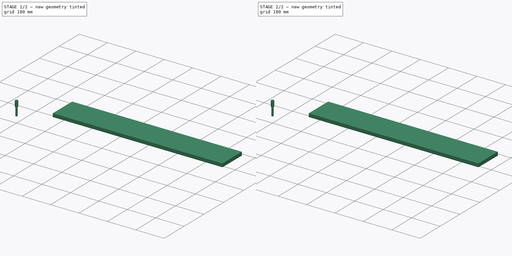
[diagram: build sequence overview — one tinted view per stage of 2, left to right]
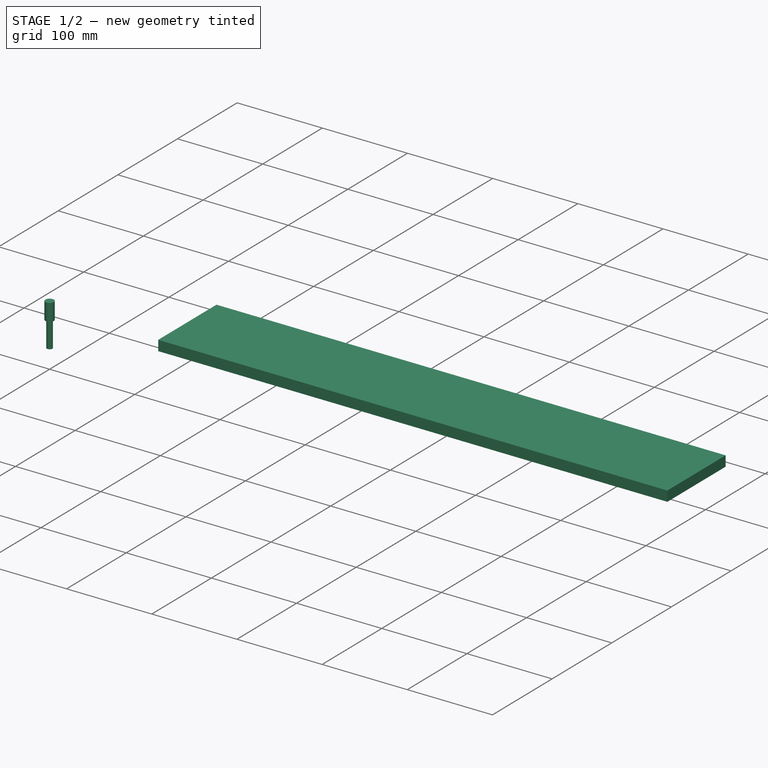
[diagram: stage 1 of 2 — iso view after this stage's code; geometry added in this stage tinted green]
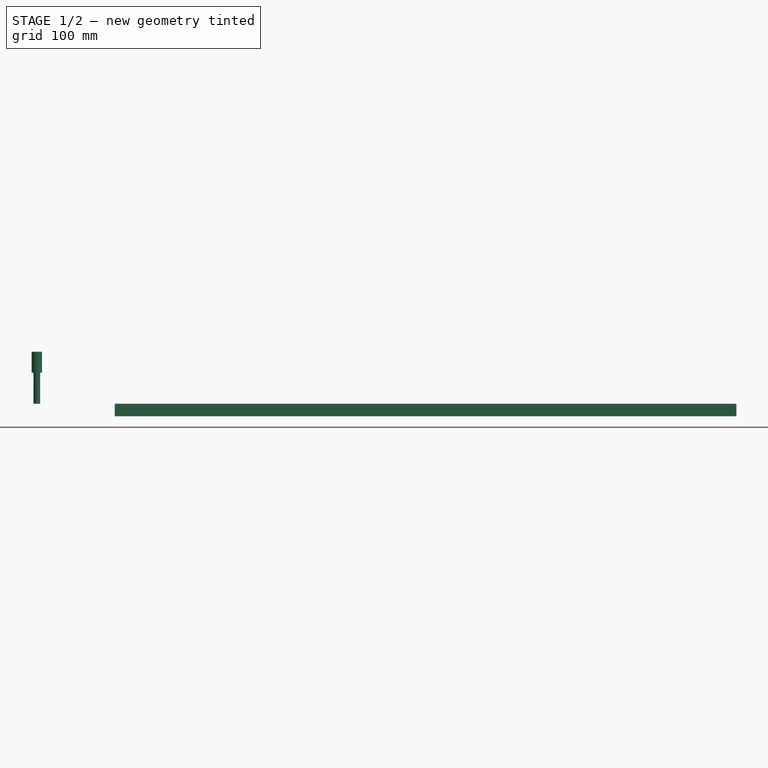
[diagram: stage 1 of 2 — front view after this stage's code; geometry added in this stage tinted green]
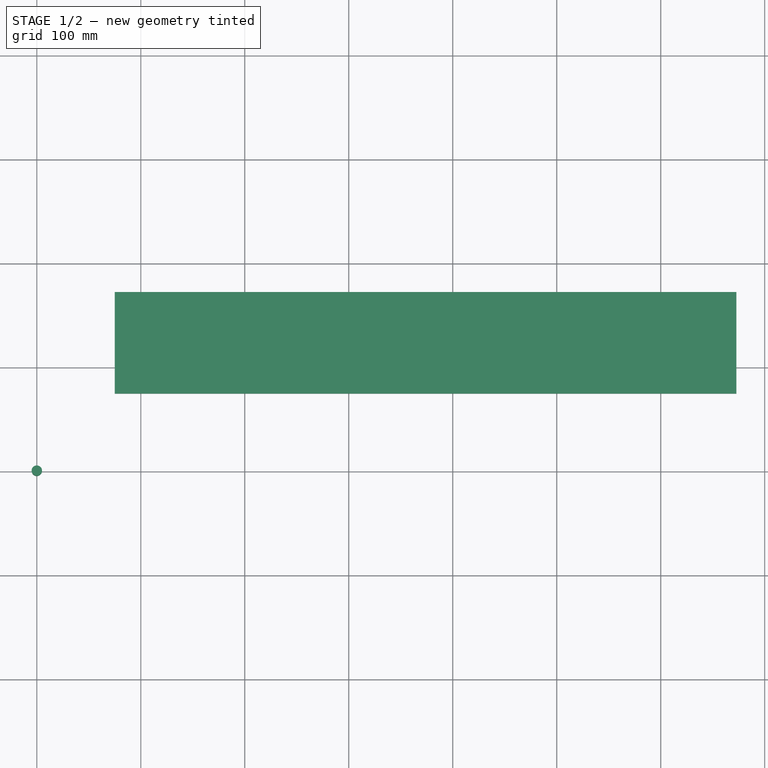
[diagram: stage 1 of 2 — top view after this stage's code; geometry added in this stage tinted green]
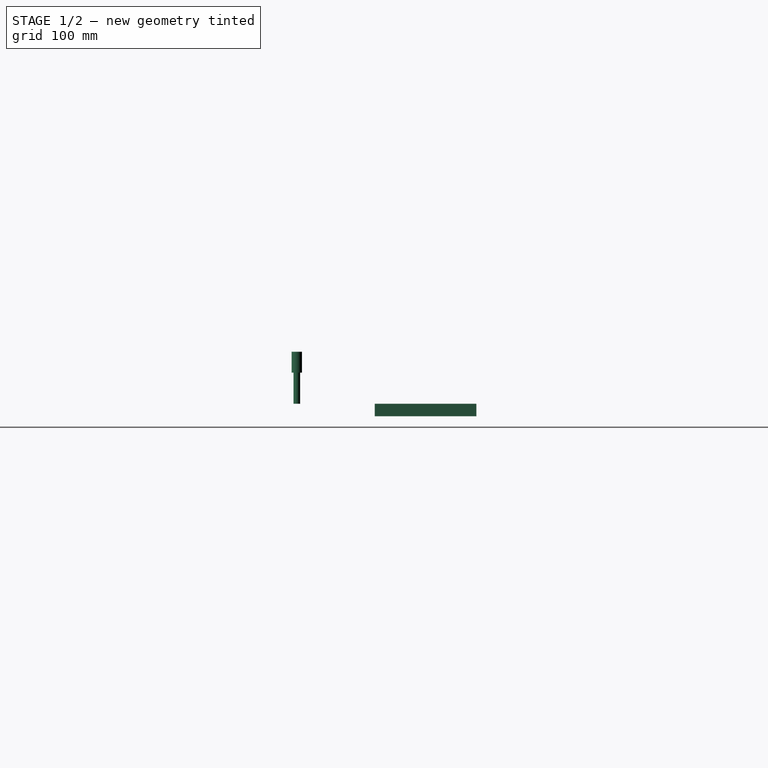
[diagram: stage 1 of 2 — right view after this stage's code; geometry added in this stage tinted green]
FCSTD DOCUMENT  (FreeCAD 0.19R14555 (Git shallow))
Label: Signs
License: All rights reserved
LicenseURL: http://en.wikipedia.org/wiki/All_rights_reserved
objects: Path::FeaturePython×4, Part::FeaturePython×3, Part::Part2DObjectPython×2, App::DocumentObjectGroup×2, Sketcher::SketchObject×1, Spreadsheet::Sheet×1, PartDesign::Pad×1, PartDesign::Body×1, App::FeaturePython×1, Path::FeatureCompoundPython×1
note: 10 computed .brp shape members not serialized (recipe doc carries the construction recipe); baked Part::Feature solids carry a one-line shape summary decoded from their .brp

FEATURE [Part::Part2DObjectPython] Clone2D001  label="Model-ShapeString001"  # Draft 2D object (typed FeaturePython)
  Fuse = false
  Objects = -> [ShapeString]
  PathResource = Model
  Placement = pos=(100,100,0) rot=(0,0,1;0rad)
  Scale = (1,1,1)
FEATURE [App::DocumentObjectGroup] Model002  label="Model"
  Group = -> [Clone001,Clone2D001]
FEATURE [Part::FeaturePython] ToolBit003  label="6.4mm Endmill004"  # Path/CAM toolbit (typed FeaturePython)
  BitPropertyNames = Chipload | CuttingEdgeHeight | Diameter | Flutes | Length | Material | ShankDiameter
  BitShape = /app/freecad/Mod/Path/Tools/Shape/endmill.fcstd
  Chipload = 0
  CuttingEdgeHeight = 30
  Diameter = 6.4
  File = <userpath>/MensShed/CNCRouter/FreeCAD/Bit/6.4mm_Endmill.fctb
  Flutes = 0
  Length = 50
  Material = 0
  ShankDiameter = 10
  ShapeName = endmill
FEATURE [Path::FeaturePython] __4mm_Endmill004  label="6.4mm Endmill005"  # Path/CAM operation (typed FeaturePython)
  HorizFeed = 10
  HorizRapid = 0
  SpindleDir = 0
  SpindleSpeed = 10000
  Tool = -> ToolBit003
  ToolNumber = 2
  VertFeed = 10
  VertRapid = 0
  expr: HorizRapid = SetupSheet002.HorizRapid
  expr: VertRapid = SetupSheet002.VertRapid
FEATURE [App::DocumentObjectGroup] Tools002  label="Tools"
  Group = -> [__4mm_Endmill004]
FEATURE [Path::FeaturePython] Engrave001  label="Engrave"  # Path/CAM operation (typed FeaturePython)
  Active = true
  ClearanceHeight = 5
  CoolantMode = None
  CycleTime = 00:09:55
  FinalDepth = -3
  OpFinalDepth = -2
  OpStartDepth = 0
  OpStockZMax = 0
  OpStockZMin = -12
  OpToolDiameter = 6.4
  SafeHeight = 3
  StartDepth = 0
  StartVertex = 0
  StepDown = 2
  ToolController = -> __4mm_Endmill004
  expr: ClearanceHeight = OpStockZMax + SetupSheet002.ClearanceHeightOffset
  expr: SafeHeight = OpStockZMax + SetupSheet002.SafeHeightOffset
  expr: StepDown = 2
  expr: FinalDepth = -3
  expr: StartDepth = 0
FEATURE [Path::FeaturePython] Profile001  label="Profile"  # Path/CAM operation (typed FeaturePython)
  Active = true
  AreaParams:
    Tolerance = 1e-07
    FitArcs = True
    Simplify = False
    CleanDistance = 0.0
    Accuracy = 0.01
    Unit = 1.0
    MinArcPoints = 4
    MaxArcPoints = 100
    ClipperScale = 10000000.0
    Fill = 0
    Coplanar = 0
    Reorient = True
    Outline = False
    Explode = False
    OpenMode = 0
    Deflection = 0.01
    SubjectFill = 0
    ClipFill = 0
    Offset = 3.2
    ExtraPass = 0
    Stepover = 0.0
    LastStepover = 0.0
    JoinType = 0
    EndType = 0
    MiterLimit = 2.0
    RoundPrecision = 0.0
    PocketMode = 0
    ToolRadius = 1.0
    PocketExtraOffset = 0.0
    PocketStepover = 0.0
    PocketLastStepover = 0.0
    FromCenter = False
    Angle = 45.0
    AngleShift = 0.0
    Shift = 0.0
    Thicken = False
    SectionCount = -1
    Stepdown = 1.0
    SectionOffset = 0.0
    SectionTolerance = 1e-06
    SectionMode = 2
    Project = False
  AttemptInverseAngle = true
  Base = -> [Clone001]
  ClearanceHeight = 5
  CoolantMode = None
  CycleTime = 00:10:35
  Direction = 0
  EnableRotation = 0
  FinalDepth = -12
  HandleMultipleFeatures = 0
  InverseAngle = false
  JoinType = 0
  LimitDepthToFace = true
  MiterLimit = 0.1
  OffsetExtra = 0
  OpFinalDepth = -12
  OpStartDepth = 0
  OpStockZMax = 0
  OpStockZMin = -12
  OpToolDiameter = 6.4
  PathParams = {'orientation': 1, 'feedrate': 10.0, 'feedrate_v': 10.0, 'verbose': True, 'resume_height': 3.0, 'retraction': 5.0, 'return_end': True, 'preamble': False}
  ReverseDirection = false
  SafeHeight = 3
  Side = 0
  StartDepth = 0
  StartPoint = (0,0,0)
  StepDown = 3
  ToolController = -> __4mm_Endmill004
  UseComp = true
  UseStartPoint = false
  processCircles = false
  processHoles = false
  processPerimeter = true
  expr: ClearanceHeight = OpStockZMax + SetupSheet002.ClearanceHeightOffset
  expr: SafeHeight = OpStockZMax + SetupSheet002.SafeHeightOffset
  expr: StepDown = 3
  expr: FinalDepth = OpFinalDepth
  expr: StartDepth = 0
FEATURE [Path::FeatureCompoundPython] Operations002  label="Operations"  # Path/CAM operation (typed FeaturePython)
  Group = -> [Engrave001,Profile001]
  UsePlacements = false
FEATURE [Part::FeaturePython] Stock  label="Stock001"  # WARN: FeaturePython — macro-defined, semantics opaque (R4)
  Height = 12
  Length = 597.77
  Placement = pos=(75,75,-12) rot=(0,0,1;0rad)
  StockType = CreateBox
  Width = 97.68
FEATURE [Path::FeaturePython] Job002  label="Job"  # Path/CAM operation (typed FeaturePython)
  CycleTime = 00:20:30
  Fixtures = G54
  GeometryTolerance = 0.01
  LastPostProcessDate = 2022-01-28 13:35:25.258617
  LastPostProcessOutput = <userpath>/MensShed/CNCRouter/Signs/Signs.ngc
  Model = -> Model002
  Operations = -> Operations002
  OrderOutputBy = 0
  PostProcessor = 7
  PostProcessorOutputFile = %D/%d.ngc
  SetupSheet = -> SetupSheet002
  SplitOutput = false
  Stock = -> Stock
  Tools = -> Tools002
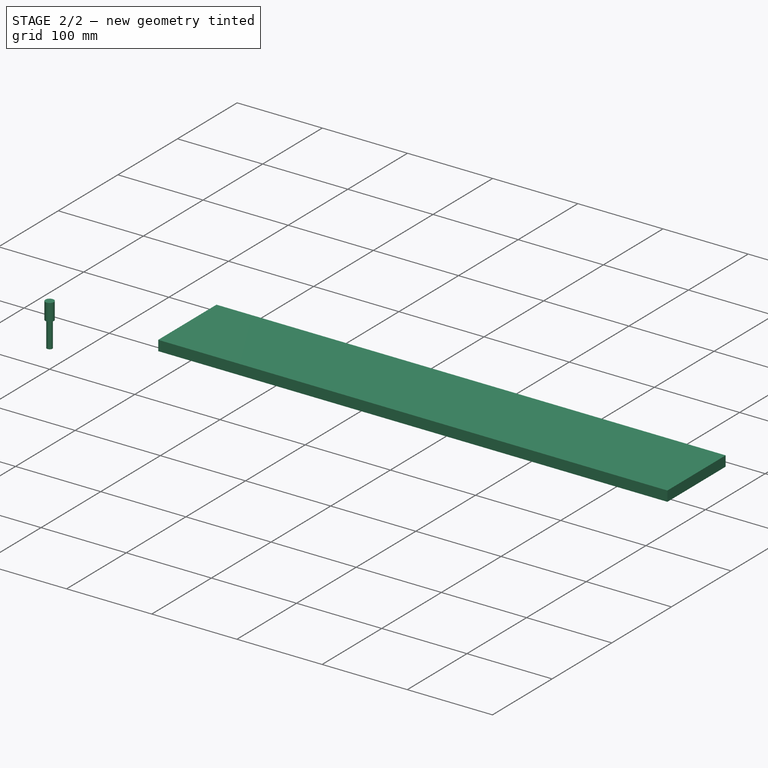
[diagram: stage 2 of 2 — iso view after this stage's code; geometry added in this stage tinted green]
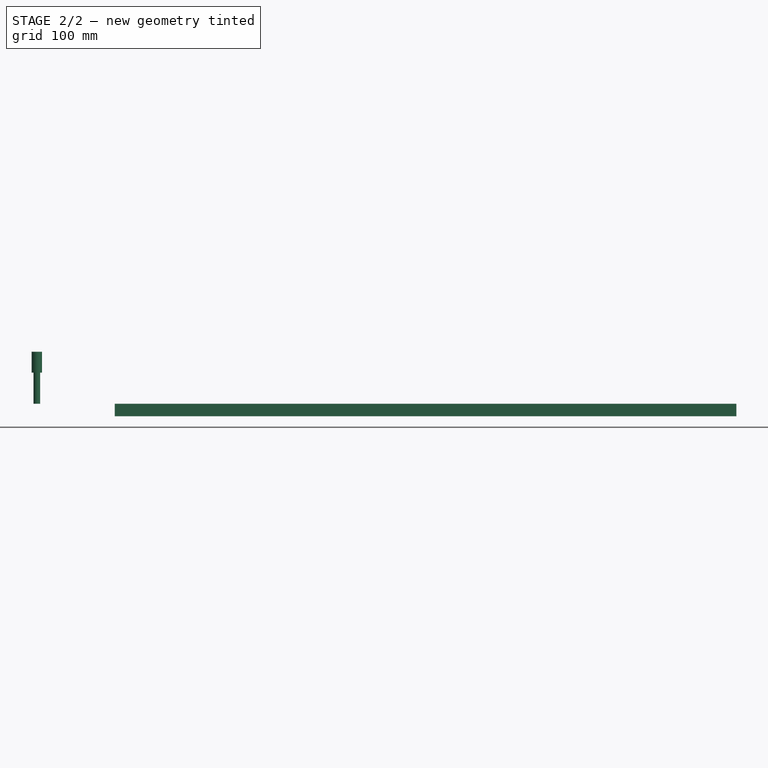
[diagram: stage 2 of 2 — front view after this stage's code; geometry added in this stage tinted green]
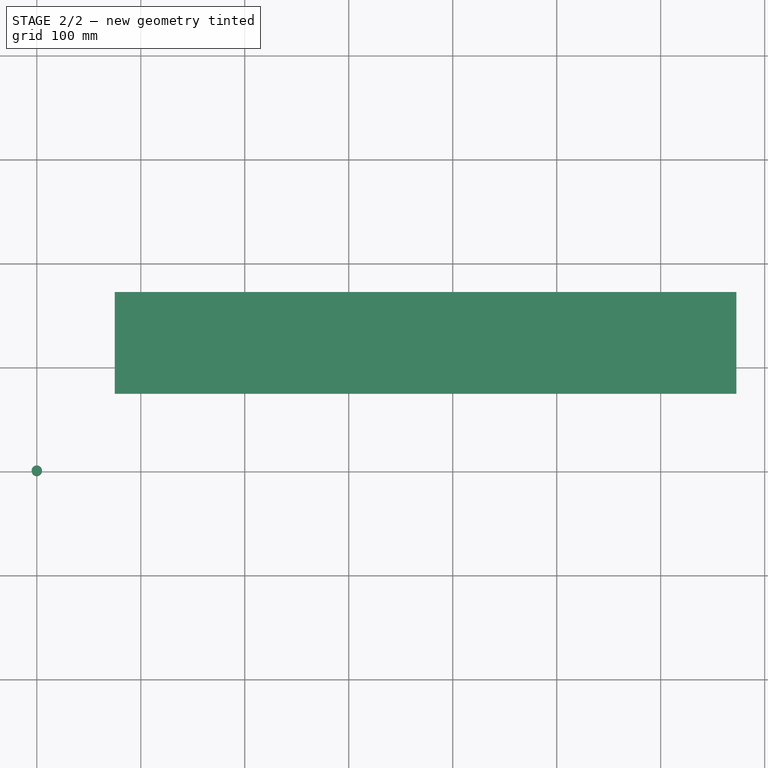
[diagram: stage 2 of 2 — top view after this stage's code; geometry added in this stage tinted green]
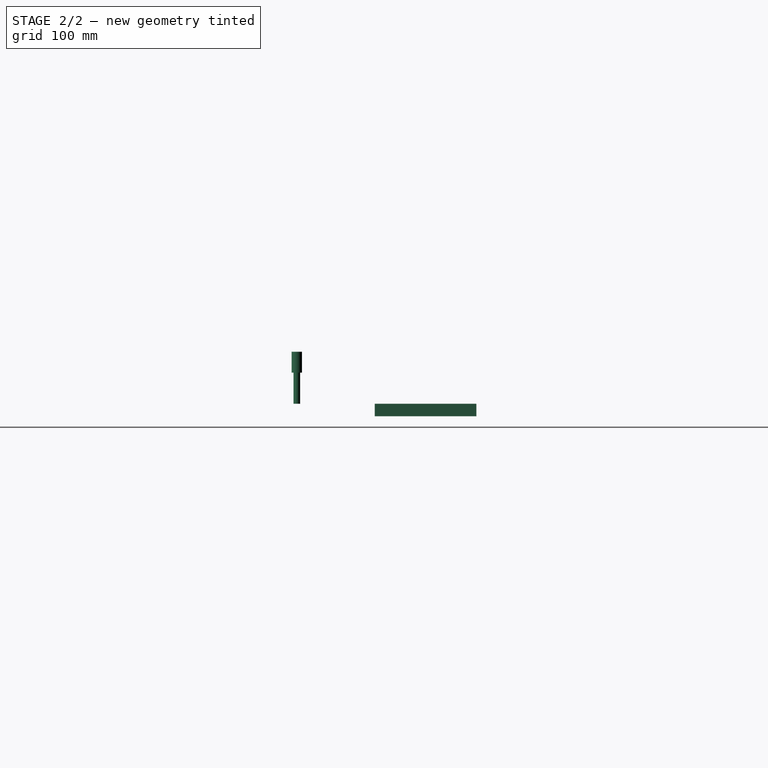
[diagram: stage 2 of 2 — right view after this stage's code; geometry added in this stage tinted green]
FEATURE [Sketcher::SketchObject] Sketch
  FullyConstrained = true
  MapMode = 5
  Support = -> [XY_Plane]
  expr: Constraints[11] = <<SignSizes>>.XOffset
  expr: Constraints[10] = <<SignSizes>>.YOffset
  expr: Constraints[9] = <<SignSizes>>.Width
  expr: Constraints[8] = <<SignSizes>>.Length
  sketch-geometry (4):
    g0: LineSegment StartX=75 StartY=172.678 StartZ=0 EndX=672.772 EndY=172.678 EndZ=0
    g1: LineSegment StartX=672.772 StartY=172.678 StartZ=0 EndX=672.772 EndY=75 EndZ=0
    g2: LineSegment StartX=672.772 StartY=75 StartZ=0 EndX=75 EndY=75 EndZ=0
    g3: LineSegment StartX=75 StartY=75 StartZ=0 EndX=75 EndY=172.678 EndZ=0
  constraints (12):
    c: Coincident(g0,g1)
    c: Coincident(g1,g2)
    c: Coincident(g2,g3)
    c: Coincident(g3,g0)
    c: Horizontal(g0)
    c: Horizontal(g2)
    c: Vertical(g1)
    c: Vertical(g3)
    c: DistanceX(g2,g1) = 597.772
    c: DistanceY(g2,g0) = 97.6779
    c: DistanceY(g-1,g2) = 75
    c: DistanceX(g-1,g2) = 75
FEATURE [Spreadsheet::Sheet] Spreadsheet  label="SignSizes"
  cells = A1=Sign Length; B1(Length)==B9 + 50; A2=Sign Width; B2(Width)==B10 + 50; A3=Sign Thickness; B3(Thickness)=12; A4=X Offset; B4(XOffset)==B12 - B14; C4=10; A5=Y Offset; B5(YOffset)==B13 - B14; A7=Text Information Read from Shapestring; A8=String; B8==<<ShapeString>>.String; A9=Text Length; B9==<<ShapeString>>.Shape.BoundBox.XLength; A10=Text Width; B10==<<ShapeString>>.Shape.BoundBox.YLength; A11=Font Size; B11==<<ShapeString>>.Size; A12=Text X Location; B12==<<ShapeString>>.Placement.Base.x; A13=Text X Location; B13==<<ShapeString>>.Placement.Base.y; A14=Margin; B14==25mm; A15=Text Depth; B15(TextDepth)=-5
FEATURE [PartDesign::Pad] Pad
  Direction = (1,1,1)
  Length = 12
  Length2 = 100
  Profile = -> Sketch
  Reversed = true
  Type = 0
  expr: Length = <<SignSizes>>.Thickness
FEATURE [PartDesign::Body] Body  label="Rectangle"
  Group = -> [Sketch,Pad]
  Origin = -> Origin
  Tip = -> Pad
FEATURE [Part::Part2DObjectPython] ShapeString  # Draft 2D object (typed FeaturePython)
  FontFile = /run/user/1000/doc/bc03c9e0/DejaVuSans-Bold.ttf
  Placement = pos=(100,100,0) rot=(0,0,1;0rad)
  Size = 48
  String = The Men's Shed
  Tracking = 0
FEATURE [App::FeaturePython] SetupSheet002  label="SetupSheet"  # Path/CAM operation (typed FeaturePython)
  ClearanceHeightExpression = OpStockZMax+SetupSheet002.ClearanceHeightOffset
  ClearanceHeightOffset = 5
  CoolantMode = 0
  CoolantModes = None | Flood | Mist
  FinalDepthExpression = OpFinalDepth
  HorizRapid = 0
  SafeHeightExpression = OpStockZMax+SetupSheet002.SafeHeightOffset
  SafeHeightOffset = 3
  StartDepthExpression = OpStartDepth
  StepDownExpression = OpToolDiameter
  VertRapid = 0
FEATURE [Part::FeaturePython] Clone001  label="Model-Rectangle001"  # Draft clone (typed FeaturePython)
  AttacherType = Attacher::AttachEngine3D
  Fuse = false
  Objects = -> [Body]
  PathResource = Model
  Scale = (1,1,1)
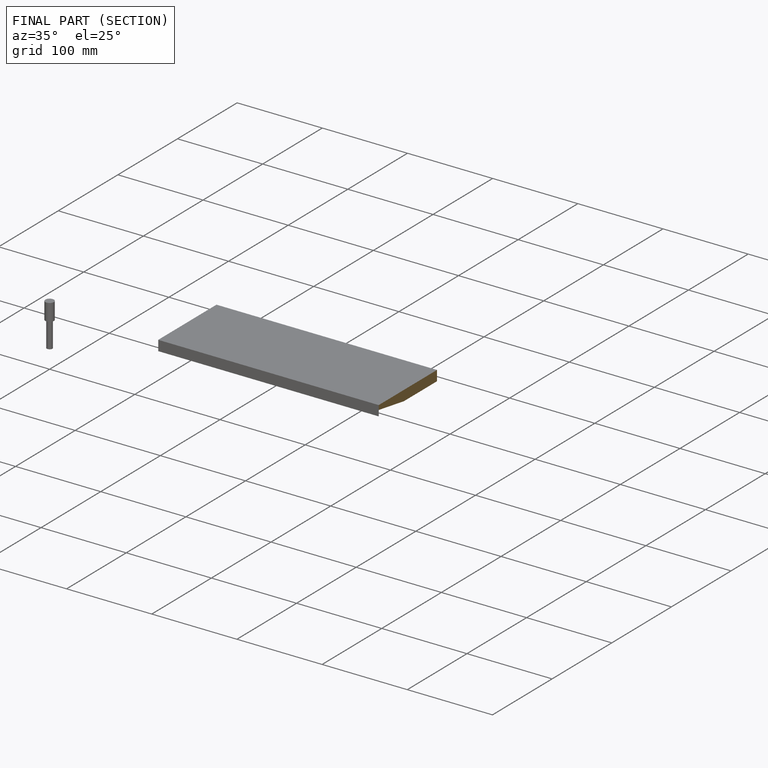
[diagram: finished part — half-section view (interior)]
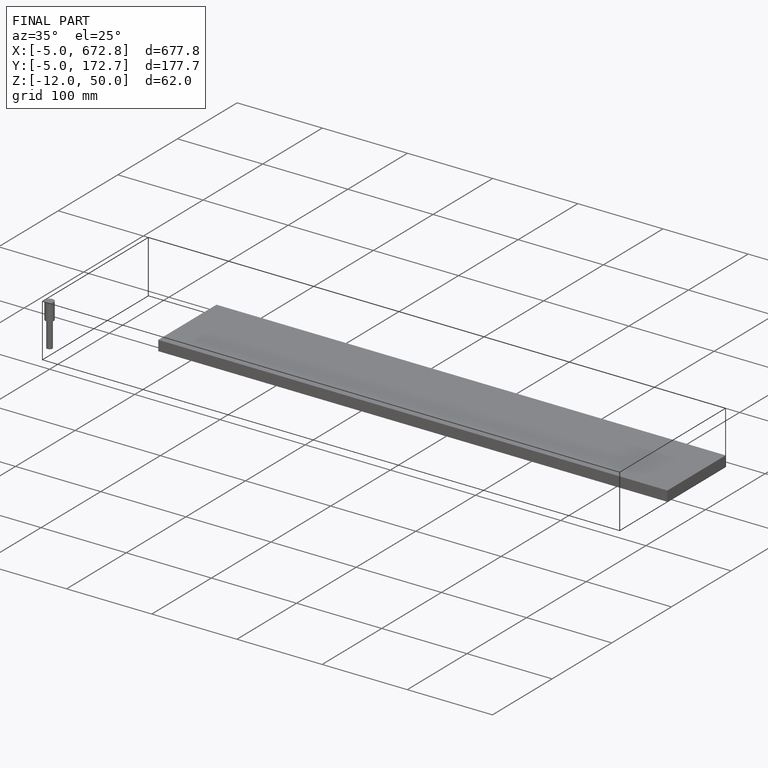
[diagram: finished part — iso view with bounding-box wireframe]
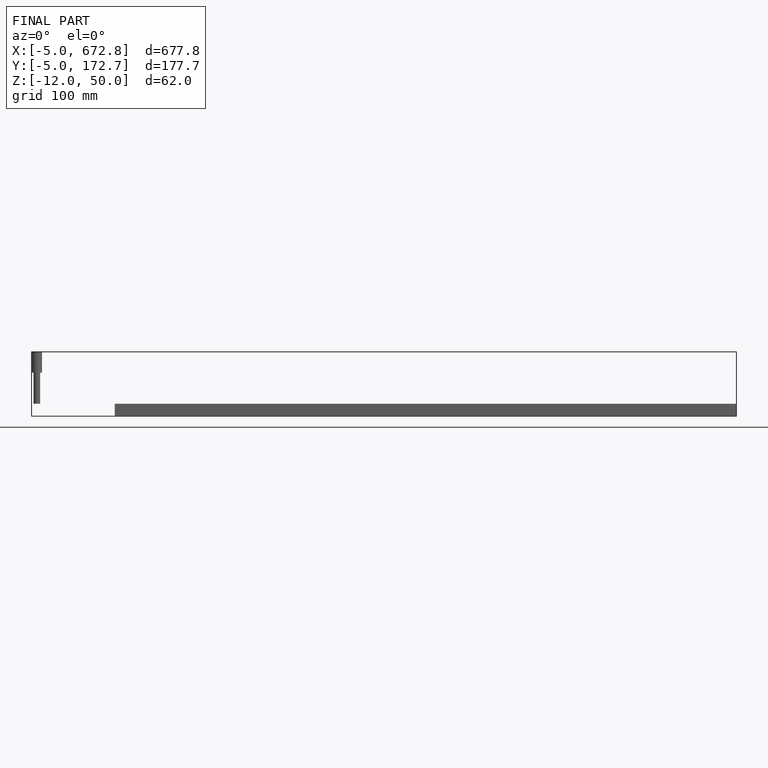
[diagram: finished part — front view with bounding-box wireframe]
